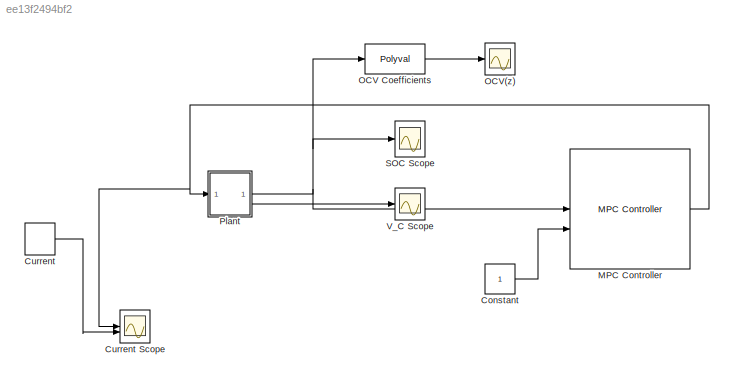
MODEL slx_ee13f2494bf2
KIND model
CONFIG AbsTol = auto
CONFIG EnableMultiTasking = off
CONFIG FixedStep = auto
CONFIG MaxStep = auto
CONFIG MinStep = auto
CONFIG RelTol = 1e-3
CONFIG SampleTimeConstraint = Unconstrained
CONFIG SolverName = VariableStepAuto
CONFIG StartTime = 0.0
CONFIG StopTime = 600
WORKSPACE source: mxarray member
WORKSPACE A: Simulink.Parameter (value not decoded)
WORKSPACE B = 1
WORKSPACE C = 1
WORKSPACE D = 1
BLOCK [Constant] Constant
BLOCK [DiscretePulseGenerator] Current
  Amplitude = -5
  Period = 40
  PulseType = Time based
  PulseWidth = 50
BLOCK [Scope] Current Scope
  Floating = off
  NumInputPorts = 2
  ScopeSpecificationString = Simulink.scopes.TimeScopeBlockCfg('CurrentConfiguration', extmgr.ConfigurationSet(extmgr.Configuration('Core','General UI',true),extmgr.Configuration('Core','Source UI',true),extmgr.Configuration('Sources','WiredSimulink',true),extmgr.Configuration('Visuals','Time Domain',true,'SerializedDisplays',{struct('MinYLimReal','-6.24277','MaxYLimReal','6.18495','YLabelReal','','MinYLimMag','0.00000','MaxY...<+1372ch>
BLOCK [Reference] MPC Controller  REF=mpclib/MPC Controller  (lib defined in mdl_ae329e0e0455)
  SCDEnableBlockLinearizationSpecification = on
  SourceBlock = mpclib/MPC Controller
  SourceType = MPC
BLOCK [Polyval] OCV Coefficients
  Coefs = [p_3, p_2, p_1, p_0]
BLOCK [Scope] OCV(z)
  Floating = off
  NumInputPorts = 1
  ScopeSpecificationString = Simulink.scopes.TimeScopeBlockCfg('CurrentConfiguration', extmgr.ConfigurationSet(extmgr.Configuration('Core','General UI',true),extmgr.Configuration('Core','Source UI',true),extmgr.Configuration('Sources','WiredSimulink',true,'DataLoggingVariableName','ScopeData1'),extmgr.Configuration('Visuals','Time Domain',true,'SerializedDisplays',{struct('MinYLimReal','3.79172','MaxYLimReal','4.21268','YLabe...<+1410ch>
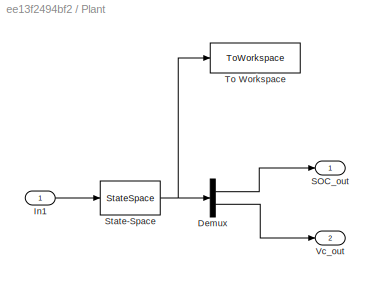
BLOCK [SubSystem] Plant
BLOCK [Demux] Plant/Demux
  Outputs = 2
BLOCK [Inport] Plant/In1
BLOCK [Outport] Plant/SOC_out
BLOCK [StateSpace] Plant/State-Space
  A = A_mat
  B = B_mat
  C = C_dummy
  D = D_dummy
  InitialCondition = x0
BLOCK [ToWorkspace] Plant/To Workspace
  FixptAsFi = on
  MaxDataPoints = inf
  SampleTime = -1
  SaveFormat = Timeseries
  VariableName = simout
BLOCK [Outport] Plant/Vc_out
  Port = 2
BLOCK [Scope] SOC Scope
  Floating = off
  NumInputPorts = 1
  ScopeSpecificationString = Simulink.scopes.TimeScopeBlockCfg('CurrentConfiguration', extmgr.ConfigurationSet(extmgr.Configuration('Core','General UI',true),extmgr.Configuration('Core','Source UI',true),extmgr.Configuration('Sources','WiredSimulink',true,'DataLoggingVariableName','ScopeData1'),extmgr.Configuration('Visuals','Time Domain',true,'SerializedDisplays',{struct('MinYLimReal','0.43751','MaxYLimReal','1.06241','YLabe...<+1395ch>
BLOCK [Scope] V_C Scope
  Floating = off
  NumInputPorts = 1
  ScopeSpecificationString = Simulink.scopes.TimeScopeBlockCfg('CurrentConfiguration', extmgr.ConfigurationSet(extmgr.Configuration('Core','General UI',true),extmgr.Configuration('Core','Source UI',true),extmgr.Configuration('Sources','WiredSimulink',true,'DataLoggingVariableName','ScopeData2'),extmgr.Configuration('Visuals','Time Domain',true,'SerializedDisplays',{struct('MinYLimReal','-0.00309','MaxYLimReal','0.0278','YLabe...<+1399ch>
LINE Constant:1 -> MPC Controller:2
LINE Current:1 -> Current Scope:2
NET MPC Controller:1 -> Current Scope:1, Plant:1
LINE OCV Coefficients:1 -> OCV(z):1
LINE Plant/Demux:1 -> Plant/SOC_out:1
LINE Plant/Demux:2 -> Plant/Vc_out:1
LINE Plant/In1:1 -> Plant/State-Space:1
NET Plant/State-Space:1 -> Plant/Demux:1, Plant/To Workspace:1
NET Plant:1 -> MPC Controller:1, OCV Coefficients:1, SOC Scope:1
LINE Plant:2 -> V_C Scope:1
note: NET lines group one-source signal fan-out (src -> all destinations, sorted); 1:1 wires keep LINE
